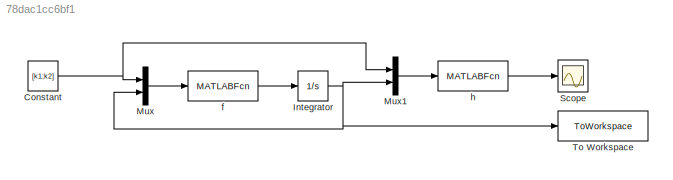
MODEL slx_78dac1cc6bf1
KIND model
CONFIG AbsTol = auto
CONFIG EnableMultiTasking = off
CONFIG FixedStep = auto
CONFIG MaxStep = auto
CONFIG MinStep = auto
CONFIG RelTol = 1e-3
CONFIG SampleTimeConstraint = Unconstrained
CONFIG SolverName = VariableStepAuto
CONFIG StartTime = 0.0
CONFIG StopTime = 10.0
BLOCK [Constant] Constant
  Value = [k1;k2]
BLOCK [Integrator] Integrator
  InitialCondition = state0
  Ports = [1, 1]
BLOCK [Mux] Mux
  DisplayOption = bar
  Inputs = 2
  Ports = [2, 1]
BLOCK [Mux] Mux1
  DisplayOption = bar
  Inputs = 2
  Ports = [2, 1]
BLOCK [Scope] Scope
  Floating = off
  NumInputPorts = 1
  Ports = [1]
  ScopeSpecificationString = Simulink.scopes.TimeScopeBlockCfg('CurrentConfiguration', extmgr.ConfigurationSet(extmgr.Configuration('Core','General UI',true),extmgr.Configuration('Core','Source UI',true),extmgr.Configuration('Sources','WiredSimulink',true),extmgr.Configuration('Visuals','Time Domain',true,'SerializedDisplays',{},'DisplayPropertyDefaults',struct('MinYLimReal','-1.61139','MaxYLimReal','1.47703','YLabelReal','',...<+702ch>
BLOCK [ToWorkspace] To Workspace
  FixptAsFi = on
  MaxDataPoints = inf
  Ports = [1]
  SampleTime = -1
  SaveFormat = Timeseries
  VariableName = state
BLOCK [MATLABFcn] f
  MATLABFcn = f
  Ports = [1, 1]
BLOCK [MATLABFcn] h
  MATLABFcn = h
  Ports = [1, 1]
NET Constant:1 -> Mux1:1, Mux:1
NET Integrator:1 -> Mux1:2, Mux:2, To Workspace:1
LINE Mux1:1 -> h:1
LINE Mux:1 -> f:1
LINE f:1 -> Integrator:1
LINE h:1 -> Scope:1
note: NET lines group one-source signal fan-out (src -> all destinations, sorted); 1:1 wires keep LINE
